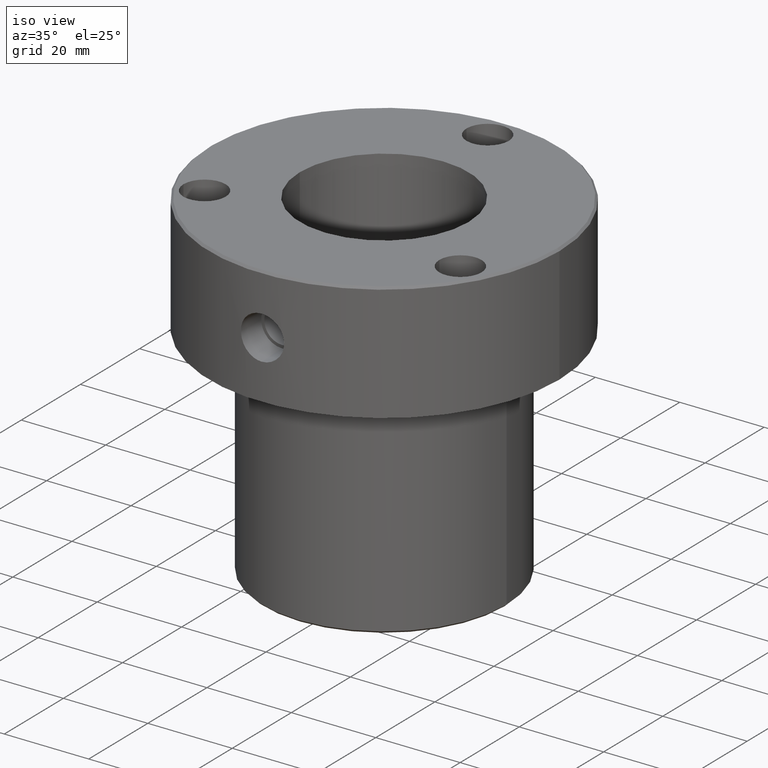
[diagram: clean part render]
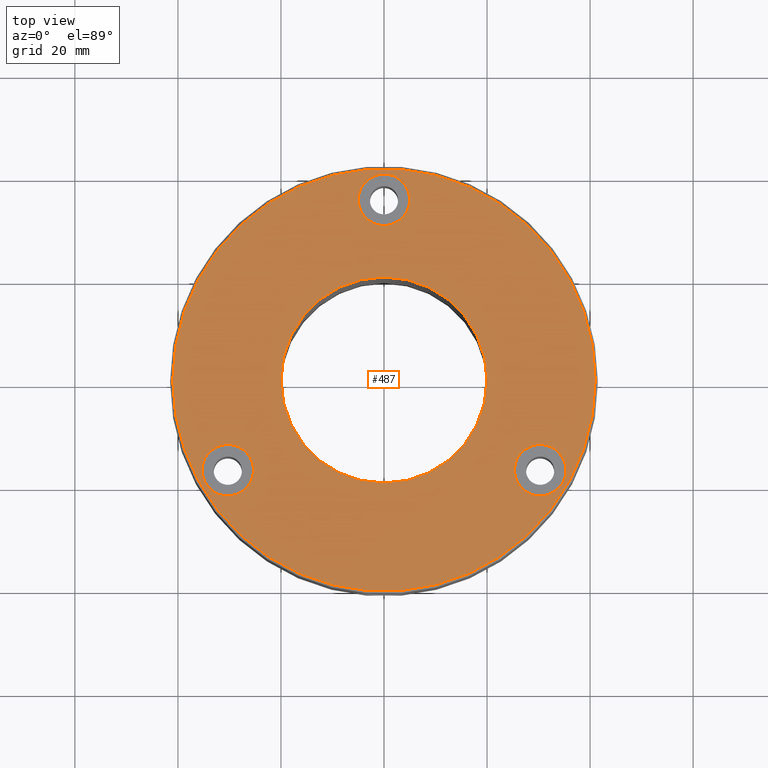
[diagram: tour spotlight — one face highlighted and labeled with its STEP entity id]
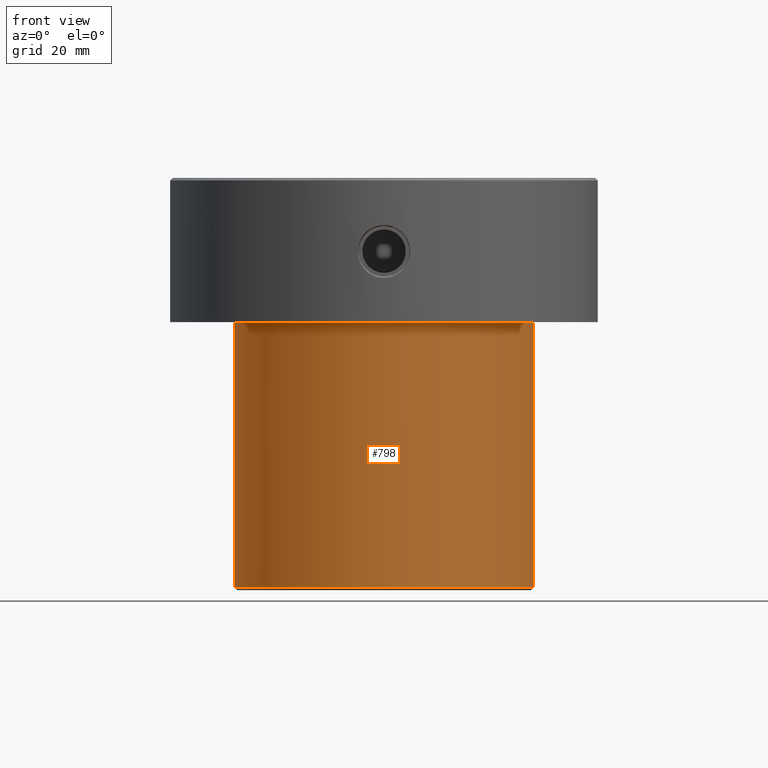
[diagram: tour spotlight — one face highlighted and labeled with its STEP entity id]
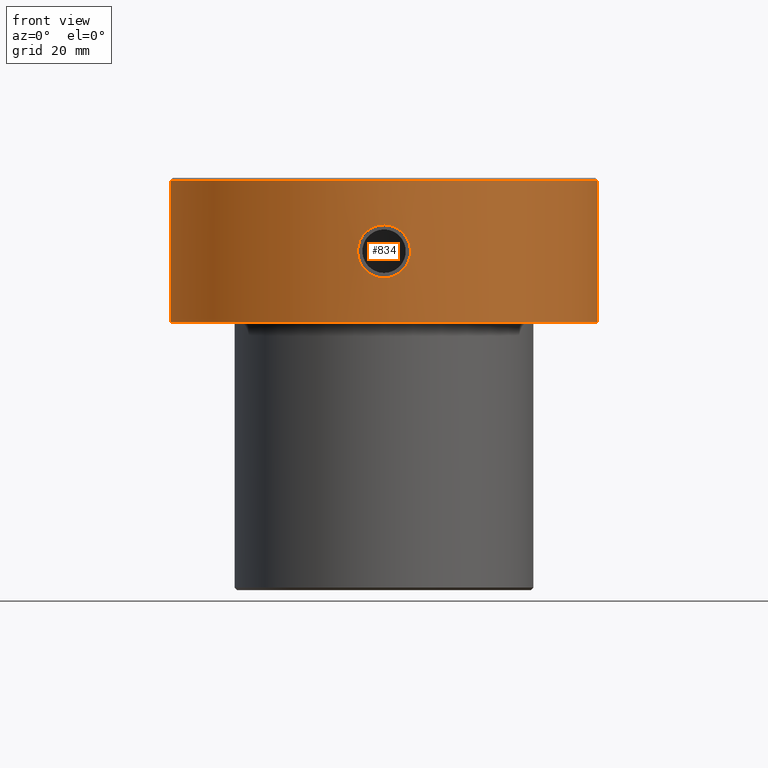
[diagram: tour spotlight — one face highlighted and labeled with its STEP entity id]
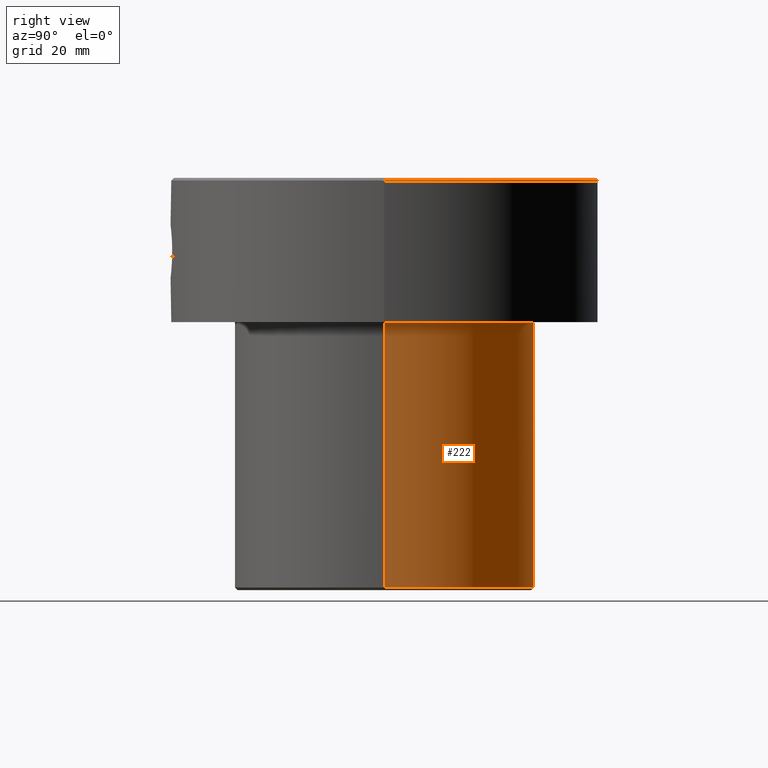
[diagram: tour spotlight — one face highlighted and labeled with its STEP entity id]
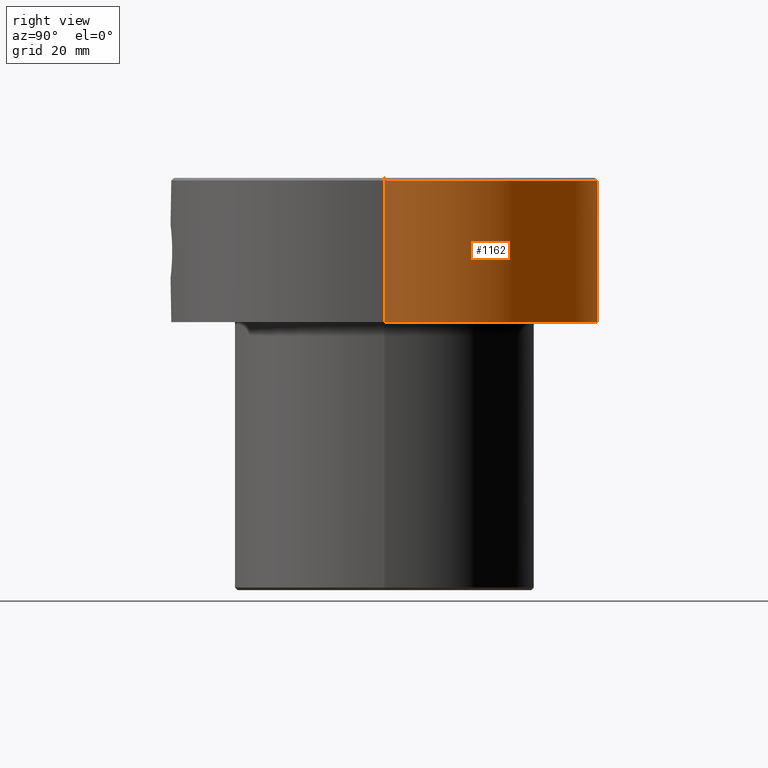
[diagram: tour spotlight — one face highlighted and labeled with its STEP entity id]
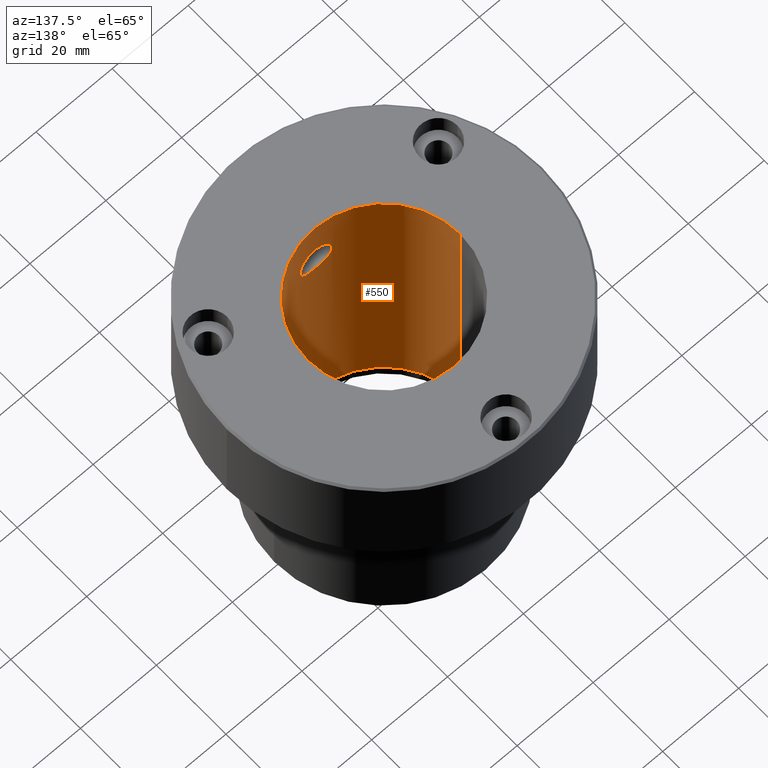
[diagram: tour spotlight — one face highlighted and labeled with its STEP entity id]
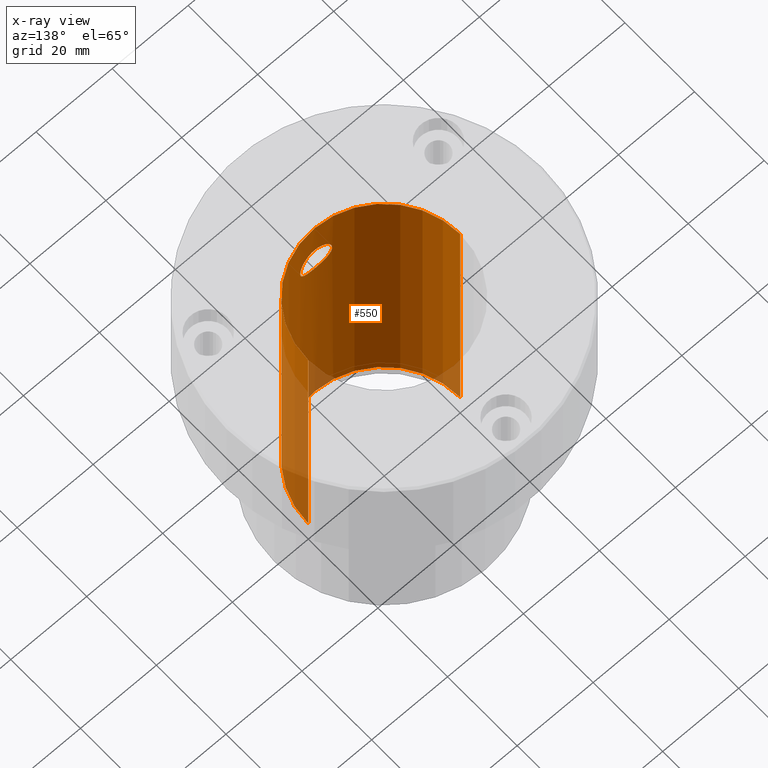
[diagram: x-ray of the same camera — body ghosted, this tour face saturated]
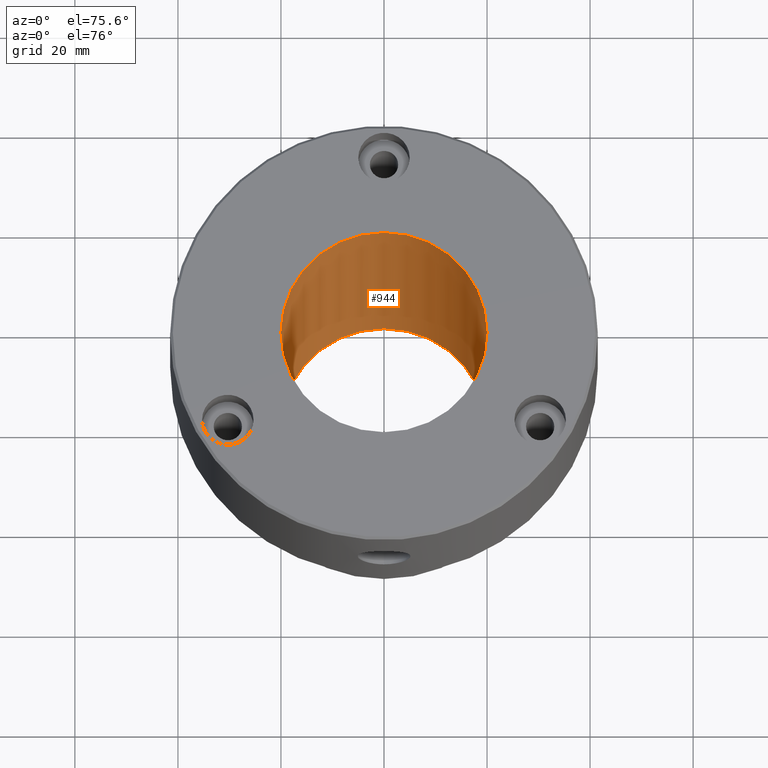
[diagram: tour spotlight — one face highlighted and labeled with its STEP entity id]
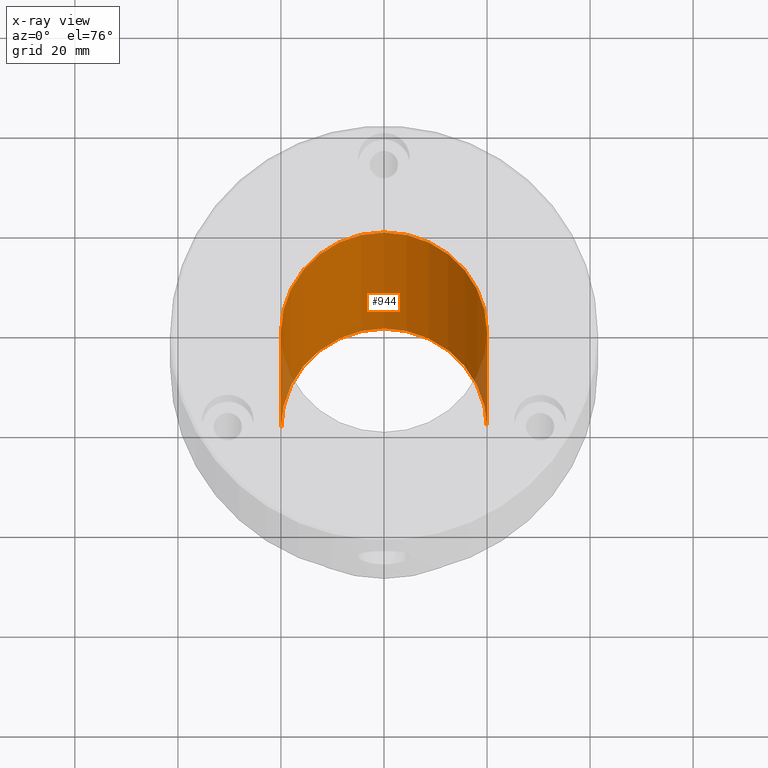
[diagram: x-ray of the same camera — body ghosted, this tour face saturated]
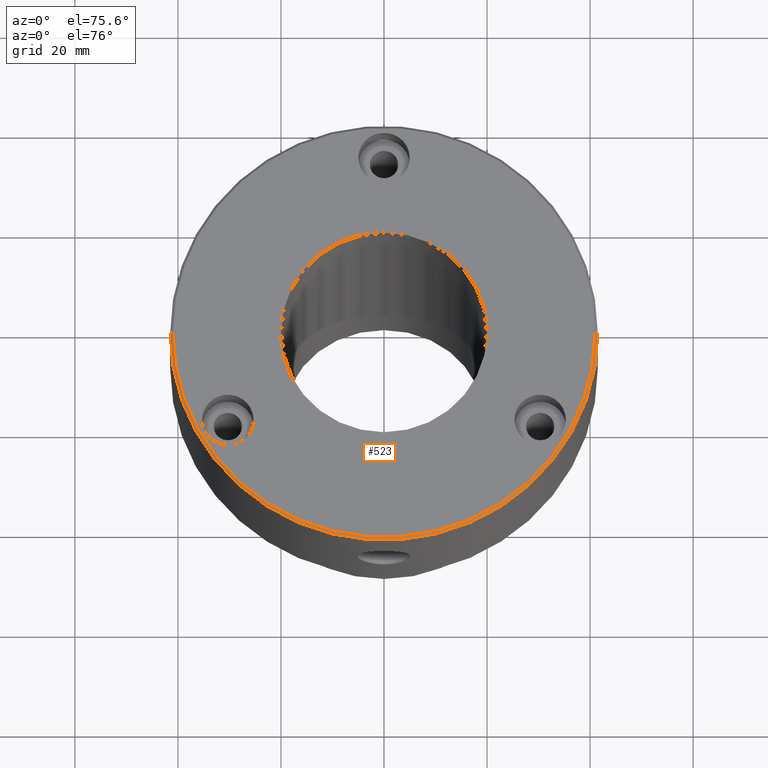
[diagram: tour spotlight — one face highlighted and labeled with its STEP entity id]
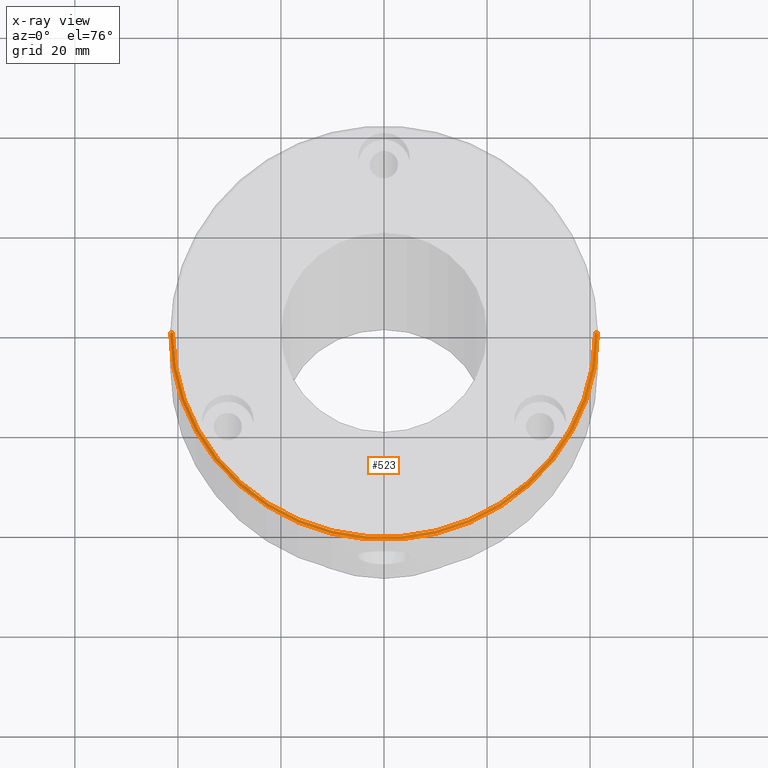
[diagram: x-ray of the same camera — body ghosted, this tour face saturated]
A machine part: a face-by-face anatomy tour. The part has 36 B-rep faces; the first image is the clean iso view, then the 8 largest visible faces are spotlighted one at a time (largest first), each with its STEP entity span.

Face 1 — top view, entity #487. In plain terms, the highlighted planar face has unit normal (0, -0, 1).
Definition (entity closure, byte-faithful):
#1 = CARTESIAN_POINT ( 'NONE',  ( 25.31088913245528715, -17.50000000000013856, 0.000000000000000000 ) ) ;
#8 = AXIS2_PLACEMENT_3D ( 'NONE', #1085, #636, #1178 ) ;
#27 = CARTESIAN_POINT ( 'NONE',  ( 30.31088913245528360, -17.50000000000013856, 0.000000000000000000 ) ) ;
#37 = EDGE_CURVE ( 'NONE', #326, #126, #994, .T. ) ;
#44 = CIRCLE ( 'NONE', #209, 20.00000000000000000 ) ;
#49 = CARTESIAN_POINT ( 'NONE',  ( 35.31088913245528005, -17.50000000000013856, 0.000000000000000000 ) ) ;
#58 = CARTESIAN_POINT ( 'NONE',  ( 0.000000000000000000, 0.000000000000000000, 0.000000000000000000 ) ) ;
#67 = CARTESIAN_POINT ( 'NONE',  ( -35.31088913245540084, -17.49999999999993605, 0.000000000000000000 ) ) ;
#77 = ORIENTED_EDGE ( 'NONE', *, *, #744, .F. ) ;
#107 = EDGE_LOOP ( 'NONE', ( #364, #694 ) ) ;
#114 = CARTESIAN_POINT ( 'NONE',  ( 0.000000000000000000, 0.000000000000000000, 0.000000000000000000 ) ) ;
#116 = VERTEX_POINT ( 'NONE', #49 ) ;
#119 = DIRECTION ( 'NONE',  ( 0.000000000000000000, 0.000000000000000000, -1.000000000000000000 ) ) ;
#126 = VERTEX_POINT ( 'NONE', #889 ) ;
#148 = DIRECTION ( 'NONE',  ( 1.000000000000000000, 0.000000000000000000, 0.000000000000000000 ) ) ;
#151 = CIRCLE ( 'NONE', #425, 5.000000000000000888 ) ;
#161 = CARTESIAN_POINT ( 'NONE',  ( 0.000000000000000000, 35.00000000000000711, 0.000000000000000000 ) ) ;
#169 = CARTESIAN_POINT ( 'NONE',  ( 0.000000000000000000, 0.000000000000000000, 0.000000000000000000 ) ) ;
#175 = CIRCLE ( 'NONE', #1036, 5.000000000000000888 ) ;
#182 = AXIS2_PLACEMENT_3D ( 'NONE', #715, #511, #426 ) ;
#201 = ORIENTED_EDGE ( 'NONE', *, *, #399, .T. ) ;
#209 = AXIS2_PLACEMENT_3D ( 'NONE', #169, #547, #922 ) ;
#247 = AXIS2_PLACEMENT_3D ( 'NONE', #368, #278, #658 ) ;
#278 = DIRECTION ( 'NONE',  ( -0.000000000000000000, -0.000000000000000000, 1.000000000000000000 ) ) ;
#312 = AXIS2_PLACEMENT_3D ( 'NONE', #58, #620, #148 ) ;
#314 = AXIS2_PLACEMENT_3D ( 'NONE', #114, #119, #979 ) ;
#323 = EDGE_CURVE ( 'NONE', #864, #1001, #946, .T. ) ;
#326 = VERTEX_POINT ( 'NONE', #1043 ) ;
#329 = CARTESIAN_POINT ( 'NONE',  ( 30.31088913245528360, -17.50000000000013856, 0.000000000000000000 ) ) ;
#364 = ORIENTED_EDGE ( 'NONE', *, *, #1190, .F. ) ;
#368 = CARTESIAN_POINT ( 'NONE',  ( -30.31088913245539729, -17.49999999999993605, 0.000000000000000000 ) ) ;
#386 = EDGE_CURVE ( 'NONE', #1001, #864, #151, .T. ) ;
#399 = EDGE_CURVE ( 'NONE', #126, #326, #630, .T. ) ;
#401 = EDGE_LOOP ( 'NONE', ( #976, #978 ) ) ;
#405 = VERTEX_POINT ( 'NONE', #1119 ) ;
#425 = AXIS2_PLACEMENT_3D ( 'NONE', #1221, #466, #459 ) ;
#426 = DIRECTION ( 'NONE',  ( 1.000000000000000000, 0.000000000000000000, 0.000000000000000000 ) ) ;
#450 = FACE_OUTER_BOUND ( 'NONE', #888, .T. ) ;
#453 = DIRECTION ( 'NONE',  ( 1.000000000000000000, 0.000000000000000000, 0.000000000000000000 ) ) ;
#459 = DIRECTION ( 'NONE',  ( 1.000000000000000000, 0.000000000000000000, 0.000000000000000000 ) ) ;
#466 = DIRECTION ( 'NONE',  ( -0.000000000000000000, -0.000000000000000000, 1.000000000000000000 ) ) ;
#480 = CARTESIAN_POINT ( 'NONE',  ( -5.000000000000000888, 35.00000000000000711, 0.000000000000000000 ) ) ;
#487 = ADVANCED_FACE ( 'NONE', ( #1004, #545, #930, #1097, #450 ), #539, .T. ) ;
#499 = CARTESIAN_POINT ( 'NONE',  ( -20.00000000000000000, 0.000000000000000000, 0.000000000000000000 ) ) ;
#511 = DIRECTION ( 'NONE',  ( -0.000000000000000000, -0.000000000000000000, 1.000000000000000000 ) ) ;
#517 = DIRECTION ( 'NONE',  ( -0.000000000000000000, -0.000000000000000000, 1.000000000000000000 ) ) ;
#539 = PLANE ( 'NONE',  #312 ) ;
#545 = FACE_BOUND ( 'NONE', #840, .T. ) ;
#547 = DIRECTION ( 'NONE',  ( 0.000000000000000000, 0.000000000000000000, -1.000000000000000000 ) ) ;
#556 = CIRCLE ( 'NONE', #8, 5.000000000000000888 ) ;
#592 = VERTEX_POINT ( 'NONE', #623 ) ;
#620 = DIRECTION ( 'NONE',  ( 0.000000000000000000, -0.000000000000000000, 1.000000000000000000 ) ) ;
#623 = CARTESIAN_POINT ( 'NONE',  ( 20.00000000000000000, 2.449293598294706513E-15, 0.000000000000000000 ) ) ;
#630 = CIRCLE ( 'NONE', #1160, 40.99999999999999289 ) ;
#636 = DIRECTION ( 'NONE',  ( -0.000000000000000000, -0.000000000000000000, 1.000000000000000000 ) ) ;
#657 = VERTEX_POINT ( 'NONE', #1 ) ;
#658 = DIRECTION ( 'NONE',  ( 1.000000000000000000, 0.000000000000000000, 0.000000000000000000 ) ) ;
#687 = DIRECTION ( 'NONE',  ( -0.000000000000000000, -0.000000000000000000, 1.000000000000000000 ) ) ;
#694 = ORIENTED_EDGE ( 'NONE', *, *, #1217, .F. ) ;
#695 = DIRECTION ( 'NONE',  ( -0.000000000000000000, -0.000000000000000000, 1.000000000000000000 ) ) ;
#715 = CARTESIAN_POINT ( 'NONE',  ( 0.000000000000000000, 0.000000000000000000, 0.000000000000000000 ) ) ;
#744 = EDGE_CURVE ( 'NONE', #657, #116, #1187, .T. ) ;
#758 = EDGE_CURVE ( 'NONE', #116, #657, #1235, .T. ) ;
#772 = DIRECTION ( 'NONE',  ( 1.000000000000000000, 0.000000000000000000, 0.000000000000000000 ) ) ;
#821 = AXIS2_PLACEMENT_3D ( 'NONE', #27, #517, #772 ) ;
#835 = DIRECTION ( 'NONE',  ( -0.000000000000000000, -0.000000000000000000, 1.000000000000000000 ) ) ;
#840 = EDGE_LOOP ( 'NONE', ( #912, #77 ) ) ;
#848 = CIRCLE ( 'NONE', #314, 20.00000000000000000 ) ;
#864 = VERTEX_POINT ( 'NONE', #67 ) ;
#867 = ORIENTED_EDGE ( 'NONE', *, *, #37, .T. ) ;
#869 = EDGE_CURVE ( 'NONE', #592, #1153, #44, .T. ) ;
#870 = DIRECTION ( 'NONE',  ( 1.000000000000000000, 0.000000000000000000, 0.000000000000000000 ) ) ;
#888 = EDGE_LOOP ( 'NONE', ( #867, #201 ) ) ;
#889 = CARTESIAN_POINT ( 'NONE',  ( 40.99999999999999289, 5.051668046482831961E-15, 0.000000000000000000 ) ) ;
#912 = ORIENTED_EDGE ( 'NONE', *, *, #758, .F. ) ;
#922 = DIRECTION ( 'NONE',  ( -1.000000000000000000, 0.000000000000000000, 0.000000000000000000 ) ) ;
#930 = FACE_BOUND ( 'NONE', #107, .T. ) ;
#943 = VERTEX_POINT ( 'NONE', #480 ) ;
#946 = CIRCLE ( 'NONE', #247, 5.000000000000000888 ) ;
#956 = ORIENTED_EDGE ( 'NONE', *, *, #869, .T. ) ;
#960 = EDGE_LOOP ( 'NONE', ( #1245, #956 ) ) ;
#976 = ORIENTED_EDGE ( 'NONE', *, *, #386, .F. ) ;
#978 = ORIENTED_EDGE ( 'NONE', *, *, #323, .F. ) ;
#979 = DIRECTION ( 'NONE',  ( -1.000000000000000000, 0.000000000000000000, 0.000000000000000000 ) ) ;
#994 = CIRCLE ( 'NONE', #182, 40.99999999999999289 ) ;
#1001 = VERTEX_POINT ( 'NONE', #1059 ) ;
#1004 = FACE_BOUND ( 'NONE', #401, .T. ) ;
#1036 = AXIS2_PLACEMENT_3D ( 'NONE', #161, #695, #1091 ) ;
#1043 = CARTESIAN_POINT ( 'NONE',  ( -40.99999999999999289, 0.000000000000000000, 0.000000000000000000 ) ) ;
#1051 = EDGE_CURVE ( 'NONE', #1153, #592, #848, .T. ) ;
#1059 = CARTESIAN_POINT ( 'NONE',  ( -25.31088913245539729, -17.49999999999993605, 0.000000000000000000 ) ) ;
#1085 = CARTESIAN_POINT ( 'NONE',  ( 0.000000000000000000, 35.00000000000000711, 0.000000000000000000 ) ) ;
#1091 = DIRECTION ( 'NONE',  ( 1.000000000000000000, 0.000000000000000000, 0.000000000000000000 ) ) ;
#1097 = FACE_BOUND ( 'NONE', #960, .T. ) ;
#1119 = CARTESIAN_POINT ( 'NONE',  ( 5.000000000000000888, 35.00000000000000711, 0.000000000000000000 ) ) ;
#1153 = VERTEX_POINT ( 'NONE', #499 ) ;
#1160 = AXIS2_PLACEMENT_3D ( 'NONE', #1212, #835, #453 ) ;
#1178 = DIRECTION ( 'NONE',  ( 1.000000000000000000, 0.000000000000000000, 0.000000000000000000 ) ) ;
#1187 = CIRCLE ( 'NONE', #1209, 4.999999999999997335 ) ;
#1190 = EDGE_CURVE ( 'NONE', #405, #943, #175, .T. ) ;
#1209 = AXIS2_PLACEMENT_3D ( 'NONE', #329, #687, #870 ) ;
#1212 = CARTESIAN_POINT ( 'NONE',  ( 0.000000000000000000, 0.000000000000000000, 0.000000000000000000 ) ) ;
#1217 = EDGE_CURVE ( 'NONE', #943, #405, #556, .T. ) ;
#1221 = CARTESIAN_POINT ( 'NONE',  ( -30.31088913245539729, -17.49999999999993605, 0.000000000000000000 ) ) ;
#1235 = CIRCLE ( 'NONE', #821, 4.999999999999997335 ) ;
#1245 = ORIENTED_EDGE ( 'NONE', *, *, #1051, .T. ) ;

Face 2 — front view, entity #798. In plain terms, the highlighted cylindrical surface (partial cylindrical patch) has radius 29 mm, axis along (-0, -0, 1).
Definition (entity closure, byte-faithful):
#11 = VERTEX_POINT ( 'NONE', #693 ) ;
#39 = FACE_OUTER_BOUND ( 'NONE', #75, .T. ) ;
#46 = EDGE_CURVE ( 'NONE', #305, #11, #802, .T. ) ;
#75 = EDGE_LOOP ( 'NONE', ( #918, #863, #1228, #104 ) ) ;
#104 = ORIENTED_EDGE ( 'NONE', *, *, #482, .F. ) ;
#187 = EDGE_CURVE ( 'NONE', #680, #305, #704, .T. ) ;
#221 = DIRECTION ( 'NONE',  ( -0.000000000000000000, -0.000000000000000000, 1.000000000000000000 ) ) ;
#238 = DIRECTION ( 'NONE',  ( 1.000000000000000000, 0.000000000000000000, 0.000000000000000000 ) ) ;
#243 = DIRECTION ( 'NONE',  ( -1.000000000000000000, 0.000000000000000000, 0.000000000000000000 ) ) ;
#255 = CARTESIAN_POINT ( 'NONE',  ( 0.000000000000000000, 0.000000000000000000, -27.99999999999999645 ) ) ;
#305 = VERTEX_POINT ( 'NONE', #1213 ) ;
#315 = EDGE_CURVE ( 'NONE', #680, #467, #934, .T. ) ;
#335 = DIRECTION ( 'NONE',  ( -0.000000000000000000, -0.000000000000000000, 1.000000000000000000 ) ) ;
#336 = VECTOR ( 'NONE', #335, 1000.000000000000000 ) ;
#375 = CARTESIAN_POINT ( 'NONE',  ( -29.00000000000000000, 3.551475717527324030E-15, -27.99999999999999645 ) ) ;
#429 = CIRCLE ( 'NONE', #653, 29.00000000000000000 ) ;
#437 = CARTESIAN_POINT ( 'NONE',  ( 0.000000000000000000, 0.000000000000000000, -79.50000000000002842 ) ) ;
#467 = VERTEX_POINT ( 'NONE', #375 ) ;
#470 = VECTOR ( 'NONE', #750, 1000.000000000000000 ) ;
#474 = AXIS2_PLACEMENT_3D ( 'NONE', #787, #221, #238 ) ;
#482 = EDGE_CURVE ( 'NONE', #467, #11, #429, .T. ) ;
#653 = AXIS2_PLACEMENT_3D ( 'NONE', #255, #719, #1116 ) ;
#663 = CARTESIAN_POINT ( 'NONE',  ( -29.00000000000000000, 3.551475717527324030E-15, 0.000000000000000000 ) ) ;
#680 = VERTEX_POINT ( 'NONE', #1180 ) ;
#693 = CARTESIAN_POINT ( 'NONE',  ( 29.00000000000000000, 0.000000000000000000, -27.99999999999999645 ) ) ;
#704 = CIRCLE ( 'NONE', #1183, 29.00000000000000000 ) ;
#719 = DIRECTION ( 'NONE',  ( -0.000000000000000000, -0.000000000000000000, 1.000000000000000000 ) ) ;
#750 = DIRECTION ( 'NONE',  ( -0.000000000000000000, -0.000000000000000000, 1.000000000000000000 ) ) ;
#787 = CARTESIAN_POINT ( 'NONE',  ( 0.000000000000000000, 0.000000000000000000, 0.000000000000000000 ) ) ;
#798 = ADVANCED_FACE ( 'NONE', ( #39 ), #991, .T. ) ;
#802 = LINE ( 'NONE', #1191, #336 ) ;
#863 = ORIENTED_EDGE ( 'NONE', *, *, #187, .T. ) ;
#918 = ORIENTED_EDGE ( 'NONE', *, *, #315, .F. ) ;
#934 = LINE ( 'NONE', #663, #470 ) ;
#991 = CYLINDRICAL_SURFACE ( 'NONE', #474, 29.00000000000000000 ) ;
#1096 = DIRECTION ( 'NONE',  ( -0.000000000000000000, -0.000000000000000000, 1.000000000000000000 ) ) ;
#1116 = DIRECTION ( 'NONE',  ( 1.000000000000000000, 0.000000000000000000, 0.000000000000000000 ) ) ;
#1180 = CARTESIAN_POINT ( 'NONE',  ( -29.00000000000000000, 3.551475717527324030E-15, -79.50000000000002842 ) ) ;
#1183 = AXIS2_PLACEMENT_3D ( 'NONE', #437, #1096, #243 ) ;
#1191 = CARTESIAN_POINT ( 'NONE',  ( 29.00000000000000000, 0.000000000000000000, 0.000000000000000000 ) ) ;
#1213 = CARTESIAN_POINT ( 'NONE',  ( 29.00000000000000000, 0.000000000000000000, -79.50000000000002842 ) ) ;
#1228 = ORIENTED_EDGE ( 'NONE', *, *, #46, .T. ) ;

Face 3 — front view, entity #834. In plain terms, the highlighted cylindrical surface (partial cylindrical patch) has radius 41.5 mm, axis along (-0, -0, 1).
Definition (entity closure, byte-faithful):
#15 = VERTEX_POINT ( 'NONE', #992 ) ;
#22 = AXIS2_PLACEMENT_3D ( 'NONE', #69, #257, #1236 ) ;
#42 = CIRCLE ( 'NONE', #22, 41.50000000000000000 ) ;
#45 = CARTESIAN_POINT ( 'NONE',  ( -4.968702008353958810, -41.20153389003530719, -12.91289993887919962 ) ) ;
#47 = CARTESIAN_POINT ( 'NONE',  ( 3.861269707058927025, -41.32011769456687489, -10.85618939046865350 ) ) ;
#52 = CARTESIAN_POINT ( 'NONE',  ( 4.176313524918904285, -41.28943214982925980, -11.25397034236628002 ) ) ;
#69 = CARTESIAN_POINT ( 'NONE',  ( 0.000000000000000000, 0.000000000000000000, -27.99999999999999645 ) ) ;
#80 = CARTESIAN_POINT ( 'NONE',  ( -4.457652184850283916, -41.26032858553116256, -16.82367133916453028 ) ) ;
#96 = CARTESIAN_POINT ( 'NONE',  ( -5.133944861027605278, -41.18121671560616903, -14.58322601611474667 ) ) ;
#156 = DIRECTION ( 'NONE',  ( -0.000000000000000000, -0.000000000000000000, 1.000000000000000000 ) ) ;
#162 = CARTESIAN_POINT ( 'NONE',  ( -0.6766514500765288265, -41.49578757569125997, -9.140436106059212307 ) ) ;
#163 = CARTESIAN_POINT ( 'NONE',  ( 0.3361113663424322717, -41.50000000000000000, -9.106627000000001360 ) ) ;
#167 = CARTESIAN_POINT ( 'NONE',  ( -0.3358848179217935881, -41.50000000000000000, -9.106627000000003136 ) ) ;
#172 = CARTESIAN_POINT ( 'NONE',  ( -3.870759735923740230, -41.31978293821809700, -10.85441625085839945 ) ) ;
#183 = CARTESIAN_POINT ( 'NONE',  ( -3.391550504605600924, -41.36187607212048079, -18.12598980435603124 ) ) ;
#188 = CARTESIAN_POINT ( 'NONE',  ( -5.125564061013234252, -41.18226403669493152, -13.91293155588416219 ) ) ;
#199 = EDGE_CURVE ( 'NONE', #421, #996, #832, .T. ) ;
#220 = CARTESIAN_POINT ( 'NONE',  ( -0.6750926142630175875, -41.49582201622714450, -19.35984715612938700 ) ) ;
#245 = CARTESIAN_POINT ( 'NONE',  ( 3.135542028144178595, -41.38234077573482494, -10.16326081240967483 ) ) ;
#256 = CARTESIAN_POINT ( 'NONE',  ( 3.867927861643148280, -41.32004063562263241, -17.64862558910598977 ) ) ;
#257 = DIRECTION ( 'NONE',  ( -0.000000000000000000, -0.000000000000000000, 1.000000000000000000 ) ) ;
#262 = CARTESIAN_POINT ( 'NONE',  ( 5.133735936401986777, -41.18124276104335735, -13.90992044629006408 ) ) ;
#267 = CARTESIAN_POINT ( 'NONE',  ( 3.394104630397192679, -41.36165323808776151, -10.37653633906442252 ) ) ;
#272 = CARTESIAN_POINT ( 'NONE',  ( -5.092463226589477365, -41.18637027485478797, -13.57687092004547402 ) ) ;
#275 = CARTESIAN_POINT ( 'NONE',  ( 4.970103653023421941, -41.20136385189956485, -15.58140926658041892 ) ) ;
#279 = EDGE_CURVE ( 'NONE', #15, #996, #1233, .T. ) ;
#283 = CARTESIAN_POINT ( 'NONE',  ( -4.617200543455427741, -41.24255031704900887, -16.52343980841959947 ) ) ;
#289 = CARTESIAN_POINT ( 'NONE',  ( -5.133770054922493387, -41.18123850768246541, -14.08069826201581343 ) ) ;
#296 = CARTESIAN_POINT ( 'NONE',  ( -41.50000000000000000, 5.082284216461515748E-15, -0.5000000000000143219 ) ) ;
#322 = ORIENTED_EDGE ( 'NONE', *, *, #279, .T. ) ;
#327 = LINE ( 'NONE', #779, #1144 ) ;
#333 = VERTEX_POINT ( 'NONE', #1136 ) ;
#340 = CARTESIAN_POINT ( 'NONE',  ( -3.394086074553285037, -41.36166610175697400, -10.37626308858978241 ) ) ;
#341 = CARTESIAN_POINT ( 'NONE',  ( 5.100488863915328075, -41.18542614721241790, -14.92431021878953423 ) ) ;
#345 = CARTESIAN_POINT ( 'NONE',  ( 4.075041792612915437, -41.29958310239907604, -11.11709863536500009 ) ) ;
#347 = VERTEX_POINT ( 'NONE', #580 ) ;
#350 = CARTESIAN_POINT ( 'NONE',  ( -1.654948281226035656, -41.46816428171756996, -9.369456122873327075 ) ) ;
#352 = CARTESIAN_POINT ( 'NONE',  ( 3.393836595590068672, -41.36167909109607876, -18.12378467651598868 ) ) ;
#357 = CARTESIAN_POINT ( 'NONE',  ( -1.334466502813387301, -41.47984381437148471, -9.272069786490492405 ) ) ;
#359 = CARTESIAN_POINT ( 'NONE',  ( 1.335257197043239197, -41.47985037499571348, -19.22799268107951676 ) ) ;
#365 = CARTESIAN_POINT ( 'NONE',  ( 2.569980992943154074, -41.42061513642919834, -18.70572280359078121 ) ) ;
#372 = CARTESIAN_POINT ( 'NONE',  ( -3.132951887491444598, -41.38251185378926778, -18.33837002926375703 ) ) ;
#381 = CARTESIAN_POINT ( 'NONE',  ( -3.868908882022317641, -41.31995826587137088, -17.64772823622658393 ) ) ;
#388 = CARTESIAN_POINT ( 'NONE',  ( -1.655288949730983727, -41.46813820925184757, -19.13030085942898495 ) ) ;
#394 = VECTOR ( 'NONE', #559, 1000.000000000000000 ) ;
#407 = DIRECTION ( 'NONE',  ( -0.000000000000000000, -0.000000000000000000, 1.000000000000000000 ) ) ;
#421 = VERTEX_POINT ( 'NONE', #923 ) ;
#434 = CARTESIAN_POINT ( 'NONE',  ( 5.100580268673916784, -41.18541498604831474, -13.57613788281328837 ) ) ;
#440 = CARTESIAN_POINT ( 'NONE',  ( 1.654050052049929720, -41.46733879550497193, -9.377957995213547449 ) ) ;
#445 = CARTESIAN_POINT ( 'NONE',  ( 0.000000000000000000, 0.000000000000000000, 0.000000000000000000 ) ) ;
#451 = EDGE_LOOP ( 'NONE', ( #942, #1214, #1208, #322 ) ) ;
#465 = EDGE_CURVE ( 'NONE', #421, #333, #42, .T. ) ;
#516 = CARTESIAN_POINT ( 'NONE',  ( -1.335186249268033754, -41.47982970697925964, -19.22781482291251010 ) ) ;
#533 = CARTESIAN_POINT ( 'NONE',  ( 0.6694217195533843645, -41.49593683091968899, -19.36078778065549955 ) ) ;
#540 = CARTESIAN_POINT ( 'NONE',  ( 6.298815287416284232E-16, -41.50000000000000000, -9.106627000000006689 ) ) ;
#542 = EDGE_CURVE ( 'NONE', #347, #1017, #877, .T. ) ;
#559 = DIRECTION ( 'NONE',  ( -0.000000000000000000, -0.000000000000000000, 1.000000000000000000 ) ) ;
#563 = DIRECTION ( 'NONE',  ( 0.000000000000000000, 0.000000000000000000, -1.000000000000000000 ) ) ;
#580 = CARTESIAN_POINT ( 'NONE',  ( 6.298815287416284232E-16, -41.50000000000000000, -9.106627000000006689 ) ) ;
#639 = CARTESIAN_POINT ( 'NONE',  ( 0.6696030836878821280, -41.49591732300108049, -9.139378117575709837 ) ) ;
#643 = CARTESIAN_POINT ( 'NONE',  ( 1.165872177383819652, -41.48395018266413814, -9.238160639755104597 ) ) ;
#654 = CARTESIAN_POINT ( 'NONE',  ( -4.969954534212426722, -41.20138294554474356, -15.58308990759573476 ) ) ;
#655 = CARTESIAN_POINT ( 'NONE',  ( 3.748669630381223250, -41.33051599254154951, -10.73182144592346887 ) ) ;
#713 = CARTESIAN_POINT ( 'NONE',  ( -4.871555449415037486, -41.21328197726079168, -12.59267309540596180 ) ) ;
#720 = CARTESIAN_POINT ( 'NONE',  ( 4.870844476425746805, -41.21336692532975832, -12.59050681500873736 ) ) ;
#726 = CARTESIAN_POINT ( 'NONE',  ( 4.969997645958297738, -41.20137679798295238, -12.91806904234542230 ) ) ;
#727 = AXIS2_PLACEMENT_3D ( 'NONE', #1129, #563, #917 ) ;
#735 = CARTESIAN_POINT ( 'NONE',  ( -3.132718741693854003, -41.38252761798424473, -10.16147806440636714 ) ) ;
#737 = CARTESIAN_POINT ( 'NONE',  ( 2.716001818503750886, -41.41126645968811459, -18.61791239501352635 ) ) ;
#739 = CARTESIAN_POINT ( 'NONE',  ( -2.278754979423208038, -41.43856631753568820, -9.628666380064457186 ) ) ;
#740 = CARTESIAN_POINT ( 'NONE',  ( 2.572071507729756235, -41.42118057284736210, -9.785757070644967470 ) ) ;
#743 = CARTESIAN_POINT ( 'NONE',  ( 4.872052807103845140, -41.21322599703842116, -15.90629936699669855 ) ) ;
#753 = CARTESIAN_POINT ( 'NONE',  ( -2.275777960866582905, -41.43871743576949740, -18.87267168938217665 ) ) ;
#779 = CARTESIAN_POINT ( 'NONE',  ( 41.50000000000000000, 0.000000000000000000, 0.000000000000000000 ) ) ;
#808 = DIRECTION ( 'NONE',  ( 1.000000000000000000, 0.000000000000000000, 0.000000000000000000 ) ) ;
#813 = CYLINDRICAL_SURFACE ( 'NONE', #823, 41.50000000000000000 ) ;
#818 = CARTESIAN_POINT ( 'NONE',  ( 4.613779109213201224, -41.24293614143856956, -11.96939070619375123 ) ) ;
#823 = AXIS2_PLACEMENT_3D ( 'NONE', #445, #156, #808 ) ;
#825 = CARTESIAN_POINT ( 'NONE',  ( -41.50000000000000000, 5.082284216461515748E-15, 0.000000000000000000 ) ) ;
#828 = ORIENTED_EDGE ( 'NONE', *, *, #853, .F. ) ;
#830 = CARTESIAN_POINT ( 'NONE',  ( 4.456275523610685241, -41.26047522887699870, -11.67406478259290559 ) ) ;
#832 = LINE ( 'NONE', #825, #394 ) ;
#833 = CARTESIAN_POINT ( 'NONE',  ( -4.454109271255983771, -41.26070536494628271, -11.67053161493941893 ) ) ;
#834 = ADVANCED_FACE ( 'NONE', ( #1189, #933 ), #813, .T. ) ;
#853 = EDGE_CURVE ( 'NONE', #1017, #347, #1196, .T. ) ;
#854 = CARTESIAN_POINT ( 'NONE',  ( -5.101709454286791789, -41.18527607460710982, -14.91722213312219658 ) ) ;
#877 = B_SPLINE_CURVE_WITH_KNOTS ( 'NONE', 3,
 ( #1207, #167, #162, #357, #350, #739, #920, #735, #340, #172, #1218, #833, #1225, #713, #45, #951, #272, #188, #289, #96, #854, #654, #1039, #283, #80, #1240, #381, #183, #372, #1045, #753, #388, #516, #220, #883, #1156 ),
 .UNSPECIFIED., .F., .F.,
 ( 4, 2, 2, 2, 2, 2, 2, 2, 2, 2, 2, 2, 2, 2, 2, 2, 2, 4 ),
 ( 0.02021362857546973521, 0.02121826824949517992, 0.02222290792352062810, 0.02322754759754607629, 0.02423218727157152447, 0.02523682694559696918, 0.02624146661962241736, 0.02724610629364786554, 0.02774842613066058616, 0.02825074596767330332, 0.02925538564169874109, 0.03026002531572417886, 0.03126466498974961317, 0.03226930466377504747, 0.03327394433780048177, 0.03427858401182591608, 0.03528322368585135732, 0.03628786335987679162 ),
 .UNSPECIFIED. ) ;
#883 = CARTESIAN_POINT ( 'NONE',  ( -0.3350682603603476473, -41.50000000000000000, -19.39337300000000397 ) ) ;
#904 = CARTESIAN_POINT ( 'NONE',  ( 1.811981621299564305, -41.46071242823579439, -9.434718804918906798 ) ) ;
#909 = CARTESIAN_POINT ( 'NONE',  ( 2.272759571934459544, -41.43798649201547590, -18.86499513455745003 ) ) ;
#917 = DIRECTION ( 'NONE',  ( 1.000000000000000000, 0.000000000000000000, 0.000000000000000000 ) ) ;
#920 = CARTESIAN_POINT ( 'NONE',  ( -2.577194124947769005, -41.42083520657356388, -9.789080731633461596 ) ) ;
#923 = CARTESIAN_POINT ( 'NONE',  ( -41.50000000000000000, 5.082284216461515748E-15, -27.99999999999999645 ) ) ;
#933 = FACE_BOUND ( 'NONE', #1175, .T. ) ;
#942 = ORIENTED_EDGE ( 'NONE', *, *, #199, .F. ) ;
#951 = CARTESIAN_POINT ( 'NONE',  ( -5.067404577820334488, -41.18947085699902289, -13.40828157554759414 ) ) ;
#954 = ORIENTED_EDGE ( 'NONE', *, *, #542, .F. ) ;
#992 = CARTESIAN_POINT ( 'NONE',  ( 41.50000000000000000, 0.000000000000000000, -0.5000000000000143219 ) ) ;
#996 = VERTEX_POINT ( 'NONE', #296 ) ;
#1013 = CARTESIAN_POINT ( 'NONE',  ( 4.456002940690025227, -41.26050075175471932, -16.82621984428378781 ) ) ;
#1017 = VERTEX_POINT ( 'NONE', #1172 ) ;
#1032 = CARTESIAN_POINT ( 'NONE',  ( 0.3352942580272265660, -41.50000000000000711, -19.39337300000000397 ) ) ;
#1039 = CARTESIAN_POINT ( 'NONE',  ( -4.872401314849809317, -41.21317996636337000, -15.90461268624623159 ) ) ;
#1041 = CARTESIAN_POINT ( 'NONE',  ( 2.275757424508589644, -41.43871062130158123, -9.627399528432427189 ) ) ;
#1045 = CARTESIAN_POINT ( 'NONE',  ( -2.576868211289954136, -41.42085736775601390, -18.71113336113497283 ) ) ;
#1073 = EDGE_CURVE ( 'NONE', #333, #15, #327, .T. ) ;
#1098 = CARTESIAN_POINT ( 'NONE',  ( 4.084437904173683798, -41.29893765582764331, -17.38401679090950225 ) ) ;
#1104 = CARTESIAN_POINT ( 'NONE',  ( 1.331345046396683385, -41.47895356350391438, -9.279711073221607265 ) ) ;
#1112 = CARTESIAN_POINT ( 'NONE',  ( 5.133920949912530673, -41.18121969646769998, -14.58726452070032842 ) ) ;
#1123 = CARTESIAN_POINT ( 'NONE',  ( 3.135600815351351489, -41.38232267793090813, -18.33650307568278137 ) ) ;
#1129 = CARTESIAN_POINT ( 'NONE',  ( 0.000000000000000000, 0.000000000000000000, -0.5000000000000143219 ) ) ;
#1136 = CARTESIAN_POINT ( 'NONE',  ( 41.50000000000000000, 0.000000000000000000, -27.99999999999999645 ) ) ;
#1144 = VECTOR ( 'NONE', #407, 1000.000000000000000 ) ;
#1156 = CARTESIAN_POINT ( 'NONE',  ( 2.108101396014697804E-21, -41.50000000000000000, -19.39337300000000397 ) ) ;
#1172 = CARTESIAN_POINT ( 'NONE',  ( 2.108101396014697804E-21, -41.50000000000000000, -19.39337300000000397 ) ) ;
#1175 = EDGE_LOOP ( 'NONE', ( #828, #954 ) ) ;
#1189 = FACE_OUTER_BOUND ( 'NONE', #451, .T. ) ;
#1196 = B_SPLINE_CURVE_WITH_KNOTS ( 'NONE', 3,
 ( #1220, #1032, #533, #359, #1210, #1226, #909, #365, #737, #1123, #352, #256, #1098, #1013, #1200, #743, #275, #341, #1112, #262, #434, #726, #720, #818, #830, #52, #345, #47, #655, #267, #245, #740, #1041, #904, #440, #1104, #643, #639, #163, #540 ),
 .UNSPECIFIED., .F., .F.,
 ( 4, 2, 2, 2, 2, 2, 2, 2, 2, 2, 2, 2, 2, 2, 2, 2, 2, 2, 2, 4 ),
 ( 0.004128552001529216600, 0.005133869287400498471, 0.006139186573271779475, 0.006641845216207416941, 0.007144503859143055274, 0.008149821145014338880, 0.009155138430885620751, 0.01016045571675690609, 0.01116577300262818796, 0.01217109028849947157, 0.01317640757437075517, 0.01418172486024203705, 0.01518704214611332239, 0.01568970078904896592, 0.01619235943198460426, 0.01719767671785588786, 0.01820299400372717147, 0.01870565264666280980, 0.01920831128959845160, 0.02021362857546973174 ),
 .UNSPECIFIED. ) ;
#1200 = CARTESIAN_POINT ( 'NONE',  ( 4.613789728197060569, -41.24293684962500350, -16.53085661944571072 ) ) ;
#1207 = CARTESIAN_POINT ( 'NONE',  ( 6.298815287416284232E-16, -41.50000000000000000, -9.106627000000006689 ) ) ;
#1208 = ORIENTED_EDGE ( 'NONE', *, *, #1073, .T. ) ;
#1210 = CARTESIAN_POINT ( 'NONE',  ( 1.657148946896774389, -41.46805686273120273, -19.12959867935311564 ) ) ;
#1214 = ORIENTED_EDGE ( 'NONE', *, *, #465, .T. ) ;
#1218 = CARTESIAN_POINT ( 'NONE',  ( -4.082477898350872714, -41.29913159889288465, -11.11345080764193227 ) ) ;
#1220 = CARTESIAN_POINT ( 'NONE',  ( 2.108101396014697804E-21, -41.50000000000000000, -19.39337300000000397 ) ) ;
#1225 = CARTESIAN_POINT ( 'NONE',  ( -4.615070424327308629, -41.24279074956536562, -11.97206579864487708 ) ) ;
#1226 = CARTESIAN_POINT ( 'NONE',  ( 2.121100959485586301, -41.44604807904364208, -18.93685890734909094 ) ) ;
#1233 = CIRCLE ( 'NONE', #727, 41.50000000000000000 ) ;
#1236 = DIRECTION ( 'NONE',  ( 1.000000000000000000, 0.000000000000000000, 0.000000000000000000 ) ) ;
#1240 = CARTESIAN_POINT ( 'NONE',  ( -4.083468521059986145, -41.29903949033938915, -17.38554455033941792 ) ) ;

Face 4 — right view, entity #222. In plain terms, the highlighted cylindrical surface (partial cylindrical patch) has radius 29 mm, axis along (-0, -0, 1).
Definition (entity closure, byte-faithful):
#11 = VERTEX_POINT ( 'NONE', #693 ) ;
#46 = EDGE_CURVE ( 'NONE', #305, #11, #802, .T. ) ;
#181 = DIRECTION ( 'NONE',  ( 1.000000000000000000, 0.000000000000000000, 0.000000000000000000 ) ) ;
#219 = DIRECTION ( 'NONE',  ( -0.000000000000000000, -0.000000000000000000, 1.000000000000000000 ) ) ;
#222 = ADVANCED_FACE ( 'NONE', ( #287 ), #1049, .T. ) ;
#250 = EDGE_LOOP ( 'NONE', ( #285, #1219, #710, #777 ) ) ;
#253 = CIRCLE ( 'NONE', #332, 29.00000000000000000 ) ;
#285 = ORIENTED_EDGE ( 'NONE', *, *, #1151, .T. ) ;
#287 = FACE_OUTER_BOUND ( 'NONE', #250, .T. ) ;
#305 = VERTEX_POINT ( 'NONE', #1213 ) ;
#315 = EDGE_CURVE ( 'NONE', #680, #467, #934, .T. ) ;
#332 = AXIS2_PLACEMENT_3D ( 'NONE', #334, #691, #1079 ) ;
#334 = CARTESIAN_POINT ( 'NONE',  ( 0.000000000000000000, 0.000000000000000000, -27.99999999999999645 ) ) ;
#335 = DIRECTION ( 'NONE',  ( -0.000000000000000000, -0.000000000000000000, 1.000000000000000000 ) ) ;
#336 = VECTOR ( 'NONE', #335, 1000.000000000000000 ) ;
#362 = DIRECTION ( 'NONE',  ( -0.000000000000000000, -0.000000000000000000, 1.000000000000000000 ) ) ;
#370 = AXIS2_PLACEMENT_3D ( 'NONE', #1224, #362, #181 ) ;
#375 = CARTESIAN_POINT ( 'NONE',  ( -29.00000000000000000, 3.551475717527324030E-15, -27.99999999999999645 ) ) ;
#467 = VERTEX_POINT ( 'NONE', #375 ) ;
#470 = VECTOR ( 'NONE', #750, 1000.000000000000000 ) ;
#594 = CARTESIAN_POINT ( 'NONE',  ( 0.000000000000000000, 0.000000000000000000, -79.50000000000002842 ) ) ;
#607 = CIRCLE ( 'NONE', #765, 29.00000000000000000 ) ;
#663 = CARTESIAN_POINT ( 'NONE',  ( -29.00000000000000000, 3.551475717527324030E-15, 0.000000000000000000 ) ) ;
#680 = VERTEX_POINT ( 'NONE', #1180 ) ;
#691 = DIRECTION ( 'NONE',  ( -0.000000000000000000, -0.000000000000000000, 1.000000000000000000 ) ) ;
#693 = CARTESIAN_POINT ( 'NONE',  ( 29.00000000000000000, 0.000000000000000000, -27.99999999999999645 ) ) ;
#710 = ORIENTED_EDGE ( 'NONE', *, *, #1137, .F. ) ;
#750 = DIRECTION ( 'NONE',  ( -0.000000000000000000, -0.000000000000000000, 1.000000000000000000 ) ) ;
#765 = AXIS2_PLACEMENT_3D ( 'NONE', #594, #219, #1074 ) ;
#777 = ORIENTED_EDGE ( 'NONE', *, *, #46, .F. ) ;
#802 = LINE ( 'NONE', #1191, #336 ) ;
#934 = LINE ( 'NONE', #663, #470 ) ;
#1049 = CYLINDRICAL_SURFACE ( 'NONE', #370, 29.00000000000000000 ) ;
#1074 = DIRECTION ( 'NONE',  ( -1.000000000000000000, 0.000000000000000000, 0.000000000000000000 ) ) ;
#1079 = DIRECTION ( 'NONE',  ( 1.000000000000000000, 0.000000000000000000, 0.000000000000000000 ) ) ;
#1137 = EDGE_CURVE ( 'NONE', #11, #467, #253, .T. ) ;
#1151 = EDGE_CURVE ( 'NONE', #305, #680, #607, .T. ) ;
#1180 = CARTESIAN_POINT ( 'NONE',  ( -29.00000000000000000, 3.551475717527324030E-15, -79.50000000000002842 ) ) ;
#1191 = CARTESIAN_POINT ( 'NONE',  ( 29.00000000000000000, 0.000000000000000000, 0.000000000000000000 ) ) ;
#1213 = CARTESIAN_POINT ( 'NONE',  ( 29.00000000000000000, 0.000000000000000000, -79.50000000000002842 ) ) ;
#1219 = ORIENTED_EDGE ( 'NONE', *, *, #315, .T. ) ;
#1224 = CARTESIAN_POINT ( 'NONE',  ( 0.000000000000000000, 0.000000000000000000, 0.000000000000000000 ) ) ;

Face 5 — right view, entity #1162. In plain terms, the highlighted cylindrical surface (partial cylindrical patch) has radius 41.5 mm, axis along (-0, -0, 1).
Definition (entity closure, byte-faithful):
#15 = VERTEX_POINT ( 'NONE', #992 ) ;
#31 = CYLINDRICAL_SURFACE ( 'NONE', #708, 41.50000000000000000 ) ;
#48 = DIRECTION ( 'NONE',  ( -0.000000000000000000, -0.000000000000000000, 1.000000000000000000 ) ) ;
#92 = CIRCLE ( 'NONE', #274, 41.50000000000000000 ) ;
#111 = ORIENTED_EDGE ( 'NONE', *, *, #1073, .F. ) ;
#159 = ORIENTED_EDGE ( 'NONE', *, *, #199, .T. ) ;
#199 = EDGE_CURVE ( 'NONE', #421, #996, #832, .T. ) ;
#274 = AXIS2_PLACEMENT_3D ( 'NONE', #528, #48, #1244 ) ;
#296 = CARTESIAN_POINT ( 'NONE',  ( -41.50000000000000000, 5.082284216461515748E-15, -0.5000000000000143219 ) ) ;
#327 = LINE ( 'NONE', #779, #1144 ) ;
#333 = VERTEX_POINT ( 'NONE', #1136 ) ;
#337 = EDGE_LOOP ( 'NONE', ( #376, #159, #458, #111 ) ) ;
#376 = ORIENTED_EDGE ( 'NONE', *, *, #597, .T. ) ;
#394 = VECTOR ( 'NONE', #559, 1000.000000000000000 ) ;
#407 = DIRECTION ( 'NONE',  ( -0.000000000000000000, -0.000000000000000000, 1.000000000000000000 ) ) ;
#421 = VERTEX_POINT ( 'NONE', #923 ) ;
#438 = CARTESIAN_POINT ( 'NONE',  ( 0.000000000000000000, 0.000000000000000000, 0.000000000000000000 ) ) ;
#458 = ORIENTED_EDGE ( 'NONE', *, *, #1021, .T. ) ;
#504 = AXIS2_PLACEMENT_3D ( 'NONE', #612, #969, #596 ) ;
#528 = CARTESIAN_POINT ( 'NONE',  ( 0.000000000000000000, 0.000000000000000000, -27.99999999999999645 ) ) ;
#559 = DIRECTION ( 'NONE',  ( -0.000000000000000000, -0.000000000000000000, 1.000000000000000000 ) ) ;
#596 = DIRECTION ( 'NONE',  ( 1.000000000000000000, 0.000000000000000000, 0.000000000000000000 ) ) ;
#597 = EDGE_CURVE ( 'NONE', #333, #421, #92, .T. ) ;
#603 = FACE_OUTER_BOUND ( 'NONE', #337, .T. ) ;
#612 = CARTESIAN_POINT ( 'NONE',  ( 0.000000000000000000, 0.000000000000000000, -0.5000000000000143219 ) ) ;
#708 = AXIS2_PLACEMENT_3D ( 'NONE', #438, #811, #1171 ) ;
#779 = CARTESIAN_POINT ( 'NONE',  ( 41.50000000000000000, 0.000000000000000000, 0.000000000000000000 ) ) ;
#811 = DIRECTION ( 'NONE',  ( -0.000000000000000000, -0.000000000000000000, 1.000000000000000000 ) ) ;
#825 = CARTESIAN_POINT ( 'NONE',  ( -41.50000000000000000, 5.082284216461515748E-15, 0.000000000000000000 ) ) ;
#832 = LINE ( 'NONE', #825, #394 ) ;
#923 = CARTESIAN_POINT ( 'NONE',  ( -41.50000000000000000, 5.082284216461515748E-15, -27.99999999999999645 ) ) ;
#968 = CIRCLE ( 'NONE', #504, 41.50000000000000000 ) ;
#969 = DIRECTION ( 'NONE',  ( 0.000000000000000000, 0.000000000000000000, -1.000000000000000000 ) ) ;
#992 = CARTESIAN_POINT ( 'NONE',  ( 41.50000000000000000, 0.000000000000000000, -0.5000000000000143219 ) ) ;
#996 = VERTEX_POINT ( 'NONE', #296 ) ;
#1021 = EDGE_CURVE ( 'NONE', #996, #15, #968, .T. ) ;
#1073 = EDGE_CURVE ( 'NONE', #333, #15, #327, .T. ) ;
#1136 = CARTESIAN_POINT ( 'NONE',  ( 41.50000000000000000, 0.000000000000000000, -27.99999999999999645 ) ) ;
#1144 = VECTOR ( 'NONE', #407, 1000.000000000000000 ) ;
#1162 = ADVANCED_FACE ( 'NONE', ( #603 ), #31, .T. ) ;
#1171 = DIRECTION ( 'NONE',  ( 1.000000000000000000, 0.000000000000000000, 0.000000000000000000 ) ) ;
#1244 = DIRECTION ( 'NONE',  ( 1.000000000000000000, 0.000000000000000000, 0.000000000000000000 ) ) ;

Face 6 — auxiliary view, entity #550. An x-ray twin of the same camera follows (body ghosted, this face saturated) — the face is partly hidden behind the body. In plain terms, the highlighted cylindrical surface (partial cylindrical patch) has radius 20 mm, axis along (-0, -0, -1).
Definition (entity closure, byte-faithful):
#4 = AXIS2_PLACEMENT_3D ( 'NONE', #588, #38, #792 ) ;
#10 = CARTESIAN_POINT ( 'NONE',  ( 2.572268613171892149, -19.83523514305507973, -17.60220348819662561 ) ) ;
#16 = ORIENTED_EDGE ( 'NONE', *, *, #477, .T. ) ;
#23 = CIRCLE ( 'NONE', #4, 20.00000000000000000 ) ;
#38 = DIRECTION ( 'NONE',  ( 0.000000000000000000, 0.000000000000000000, -1.000000000000000000 ) ) ;
#44 = CIRCLE ( 'NONE', #209, 20.00000000000000000 ) ;
#53 = CARTESIAN_POINT ( 'NONE',  ( -1.868783961552844319, -19.91412792083493954, -10.46038618642582385 ) ) ;
#56 = ORIENTED_EDGE ( 'NONE', *, *, #180, .T. ) ;
#65 = CARTESIAN_POINT ( 'NONE',  ( -3.353654299641402492, -19.71743471295377503, -16.82045165954701105 ) ) ;
#76 = CARTESIAN_POINT ( 'NONE',  ( -20.00000000000000000, 0.000000000000000000, -75.00000000000000000 ) ) ;
#81 = VERTEX_POINT ( 'NONE', #986 ) ;
#99 = CARTESIAN_POINT ( 'NONE',  ( 2.785263921401146092, -19.80609834663888336, -11.07241803040048822 ) ) ;
#115 = CARTESIAN_POINT ( 'NONE',  ( 4.189367056006121359, -19.55638720641010053, -14.80167824024392331 ) ) ;
#124 = FACE_OUTER_BOUND ( 'NONE', #291, .T. ) ;
#135 = CARTESIAN_POINT ( 'NONE',  ( -4.216528546288112800, -19.55047025101320557, -14.52636337058057769 ) ) ;
#169 = CARTESIAN_POINT ( 'NONE',  ( 0.000000000000000000, 0.000000000000000000, 0.000000000000000000 ) ) ;
#180 = EDGE_CURVE ( 'NONE', #592, #430, #338, .T. ) ;
#195 = CARTESIAN_POINT ( 'NONE',  ( 3.999465006193497096, -19.59632088189774279, -15.61296161423866735 ) ) ;
#198 = CARTESIAN_POINT ( 'NONE',  ( 0.2756150484164804348, -19.99999999999999289, -10.03359999999999985 ) ) ;
#206 = CARTESIAN_POINT ( 'NONE',  ( 1.362299664337728311, -19.95519151884935383, -18.24981271918709425 ) ) ;
#209 = AXIS2_PLACEMENT_3D ( 'NONE', #169, #547, #922 ) ;
#224 = VECTOR ( 'NONE', #1007, 1000.000000000000000 ) ;
#226 = CARTESIAN_POINT ( 'NONE',  ( -4.080622983939996118, -19.57936549996151143, -13.15356835286365644 ) ) ;
#232 = ORIENTED_EDGE ( 'NONE', *, *, #869, .F. ) ;
#240 = CARTESIAN_POINT ( 'NONE',  ( -3.786859151047470284, -19.63851992076970632, -12.37529224804783112 ) ) ;
#244 = CARTESIAN_POINT ( 'NONE',  ( -3.660143356121122959, -19.66284769390588849, -16.36129569416830876 ) ) ;
#246 = CARTESIAN_POINT ( 'NONE',  ( -0.2755430704208198245, -20.00000000000000000, -10.03360000000000163 ) ) ;
#265 = CARTESIAN_POINT ( 'NONE',  ( -1.873820867006430468, -19.91365122567314216, -18.03711593845150674 ) ) ;
#291 = EDGE_LOOP ( 'NONE', ( #232, #56, #373, #1158 ) ) ;
#293 = CARTESIAN_POINT ( 'NONE',  ( 0.5540390379435934376, -19.99415081773563330, -18.43889807189760077 ) ) ;
#299 = CARTESIAN_POINT ( 'NONE',  ( 1.097712063510994041, -19.97169615324058967, -10.16962158166110441 ) ) ;
#306 = CARTESIAN_POINT ( 'NONE',  ( 3.176068291673087796, -19.74717753655064101, -17.03672036353634667 ) ) ;
#307 = B_SPLINE_CURVE_WITH_KNOTS ( 'NONE', 3,
 ( #584, #384, #293, #749, #206, #962, #569, #10, #590, #306, #757, #1238, #1143, #195, #970, #115, #574, #681, #856, #476, #952, #489, #1141, #945, #1047, #99, #668, #1249, #391, #761, #299, #1057, #198, #579 ),
 .UNSPECIFIED., .F., .F.,
 ( 4, 2, 2, 2, 2, 2, 2, 2, 2, 2, 2, 2, 2, 2, 2, 2, 4 ),
 ( 0.000000000000000000, 0.0008262216314745002158, 0.001652443262949000865, 0.002478664894423501623, 0.003304886525898002598, 0.004131108157372502705, 0.004957329788847003246, 0.005783551420321508124, 0.006609773051796013869, 0.007435994683270518747, 0.008262216314745026227, 0.009088437946219531105, 0.009914659577694037718, 0.01074088120916854260, 0.01156710284064305094, 0.01239332447211755582, 0.01321954610359206243 ),
 .UNSPECIFIED. ) ;
#310 = FACE_BOUND ( 'NONE', #958, .T. ) ;
#316 = CARTESIAN_POINT ( 'NONE',  ( -3.174273750687084394, -19.74747191637434796, -11.46117596937719618 ) ) ;
#317 = VERTEX_POINT ( 'NONE', #76 ) ;
#331 = DIRECTION ( 'NONE',  ( -0.000000000000000000, -0.000000000000000000, -1.000000000000000000 ) ) ;
#338 = LINE ( 'NONE', #537, #224 ) ;
#344 = CARTESIAN_POINT ( 'NONE',  ( -4.189367641866344805, -19.55638528648402641, -14.80060020620529038 ) ) ;
#346 = CARTESIAN_POINT ( 'NONE',  ( -2.785415367850323953, -19.80606276272085253, -11.07273473776212214 ) ) ;
#373 = ORIENTED_EDGE ( 'NONE', *, *, #1037, .T. ) ;
#384 = CARTESIAN_POINT ( 'NONE',  ( 0.2794315615266507735, -20.00000000000000000, -18.46640000000001081 ) ) ;
#391 = CARTESIAN_POINT ( 'NONE',  ( 1.870173728348516917, -19.91400995910466420, -10.46099445887978163 ) ) ;
#411 = CARTESIAN_POINT ( 'NONE',  ( -3.657055831925343004, -19.66341685569250686, -12.13357055786683425 ) ) ;
#430 = VERTEX_POINT ( 'NONE', #1113 ) ;
#433 = CARTESIAN_POINT ( 'NONE',  ( -3.176900618899491047, -19.74704087477307368, -17.03574278737037417 ) ) ;
#476 = CARTESIAN_POINT ( 'NONE',  ( 4.080832743932549356, -19.57932208112678296, -13.15408451792296063 ) ) ;
#477 = EDGE_CURVE ( 'NONE', #81, #1000, #490, .T. ) ;
#484 = AXIS2_PLACEMENT_3D ( 'NONE', #500, #1173, #932 ) ;
#489 = CARTESIAN_POINT ( 'NONE',  ( 3.788864050528077065, -19.63813114765878964, -12.37939020149068980 ) ) ;
#490 = B_SPLINE_CURVE_WITH_KNOTS ( 'NONE', 3,
 ( #748, #246, #631, #1015, #911, #53, #814, #1202, #346, #316, #788, #411, #240, #784, #226, #609, #995, #135, #344, #642, #902, #554, #244, #65, #433, #1109, #807, #908, #265, #914, #524, #1102, #627, #1195 ),
 .UNSPECIFIED., .F., .F.,
 ( 4, 2, 2, 2, 2, 2, 2, 2, 2, 2, 2, 2, 2, 2, 2, 2, 4 ),
 ( 0.01321954610359206243, 0.01404555196391275851, 0.01487155782423345632, 0.01569756368455415066, 0.01652356954487484847, 0.01734957540519554281, 0.01817558126551624062, 0.01900158712583693843, 0.01982759298615763277, 0.02065359884647833058, 0.02147960470679902839, 0.02230561056711971579, 0.02313161642744041013, 0.02395762228776109753, 0.02478362814808178841, 0.02560963400840248275, 0.02643563986872317362 ),
 .UNSPECIFIED. ) ;
#499 = CARTESIAN_POINT ( 'NONE',  ( -20.00000000000000000, 0.000000000000000000, 0.000000000000000000 ) ) ;
#500 = CARTESIAN_POINT ( 'NONE',  ( 0.000000000000000000, 0.000000000000000000, 0.000000000000000000 ) ) ;
#524 = CARTESIAN_POINT ( 'NONE',  ( -1.099007902833211148, -19.97163720919223096, -18.33009254818106726 ) ) ;
#537 = CARTESIAN_POINT ( 'NONE',  ( 20.00000000000000000, 2.449293598294706513E-15, 0.000000000000000000 ) ) ;
#547 = DIRECTION ( 'NONE',  ( 0.000000000000000000, 0.000000000000000000, -1.000000000000000000 ) ) ;
#550 = ADVANCED_FACE ( 'NONE', ( #310, #124 ), #990, .F. ) ;
#554 = CARTESIAN_POINT ( 'NONE',  ( -3.789448065073680816, -19.63801569146884773, -16.11924087767597413 ) ) ;
#569 = CARTESIAN_POINT ( 'NONE',  ( 2.114492466447202013, -19.88924434481949888, -17.90824488709065321 ) ) ;
#574 = CARTESIAN_POINT ( 'NONE',  ( 4.216290021238365604, -19.55052169302362230, -14.52755289998952826 ) ) ;
#579 = CARTESIAN_POINT ( 'NONE',  ( 5.163592013147405512E-16, -20.00000000000000000, -10.03359999999999985 ) ) ;
#581 = EDGE_CURVE ( 'NONE', #1153, #317, #1192, .T. ) ;
#584 = CARTESIAN_POINT ( 'NONE',  ( 0.000000000000000000, -20.00000000000000000, -18.46640000000001081 ) ) ;
#588 = CARTESIAN_POINT ( 'NONE',  ( 0.000000000000000000, 0.000000000000000000, -75.00000000000000000 ) ) ;
#590 = CARTESIAN_POINT ( 'NONE',  ( 2.788377768120646749, -19.80564010264934893, -17.42461329931220249 ) ) ;
#592 = VERTEX_POINT ( 'NONE', #623 ) ;
#609 = CARTESIAN_POINT ( 'NONE',  ( -4.188465737629972985, -19.55657925310156031, -13.69286351887415698 ) ) ;
#623 = CARTESIAN_POINT ( 'NONE',  ( 20.00000000000000000, 2.449293598294706513E-15, 0.000000000000000000 ) ) ;
#627 = CARTESIAN_POINT ( 'NONE',  ( -0.2793585868330044075, -20.00000000000000711, -18.46640000000001791 ) ) ;
#631 = CARTESIAN_POINT ( 'NONE',  ( -0.5499695384722260716, -19.99430766971743978, -10.06034594115346081 ) ) ;
#642 = CARTESIAN_POINT ( 'NONE',  ( -4.082070972660096331, -19.57906288069710854, -15.34117294685852961 ) ) ;
#665 = EDGE_CURVE ( 'NONE', #1000, #81, #307, .T. ) ;
#668 = CARTESIAN_POINT ( 'NONE',  ( 2.573170984834398212, -19.83510795395759274, -10.89856746421292044 ) ) ;
#671 = CARTESIAN_POINT ( 'NONE',  ( 0.000000000000000000, -20.00000000000000000, -18.46640000000001081 ) ) ;
#681 = CARTESIAN_POINT ( 'NONE',  ( 4.216509312731362868, -19.55047439905822770, -13.97579866678569971 ) ) ;
#748 = CARTESIAN_POINT ( 'NONE',  ( 5.163592013147405512E-16, -20.00000000000000000, -10.03359999999999985 ) ) ;
#749 = CARTESIAN_POINT ( 'NONE',  ( 1.094047213411402319, -19.97188240684264215, -18.33128497009699842 ) ) ;
#757 = CARTESIAN_POINT ( 'NONE',  ( 3.350309172976897898, -19.71801031974385054, -16.82493065751091521 ) ) ;
#761 = CARTESIAN_POINT ( 'NONE',  ( 1.360600762800713071, -19.95530275364898642, -10.24964022504089911 ) ) ;
#784 = CARTESIAN_POINT ( 'NONE',  ( -3.999659686499850153, -19.59628764078870944, -12.88707895412483850 ) ) ;
#788 = CARTESIAN_POINT ( 'NONE',  ( -3.351884982067243168, -19.71773026657843531, -11.67741413975367593 ) ) ;
#792 = DIRECTION ( 'NONE',  ( -1.000000000000000000, 0.000000000000000000, 0.000000000000000000 ) ) ;
#807 = CARTESIAN_POINT ( 'NONE',  ( -2.577295857801186862, -19.83460301947518190, -17.59852690968496702 ) ) ;
#814 = CARTESIAN_POINT ( 'NONE',  ( -2.115075736380294114, -19.88918734932390464, -10.59204944514744895 ) ) ;
#856 = CARTESIAN_POINT ( 'NONE',  ( 4.188883037044027979, -19.55649017442588544, -13.69548622219731371 ) ) ;
#869 = EDGE_CURVE ( 'NONE', #592, #1153, #44, .T. ) ;
#902 = CARTESIAN_POINT ( 'NONE',  ( -4.000520136916510872, -19.59610715347292853, -15.61007967810382979 ) ) ;
#908 = CARTESIAN_POINT ( 'NONE',  ( -2.116043629774843726, -19.88909978444732474, -17.90751907177704183 ) ) ;
#911 = CARTESIAN_POINT ( 'NONE',  ( -1.361156001464316700, -19.95525240837640624, -10.24990241485697773 ) ) ;
#914 = CARTESIAN_POINT ( 'NONE',  ( -1.366730839816826082, -19.95486799231895603, -18.24818691213852162 ) ) ;
#922 = DIRECTION ( 'NONE',  ( -1.000000000000000000, 0.000000000000000000, 0.000000000000000000 ) ) ;
#932 = DIRECTION ( 'NONE',  ( -1.000000000000000000, 0.000000000000000000, 0.000000000000000000 ) ) ;
#945 = CARTESIAN_POINT ( 'NONE',  ( 3.352224194307825478, -19.71767163985720117, -11.67787521794560668 ) ) ;
#952 = CARTESIAN_POINT ( 'NONE',  ( 4.000926091339980673, -19.59602705085051610, -12.89085974848139315 ) ) ;
#958 = EDGE_LOOP ( 'NONE', ( #1110, #16 ) ) ;
#962 = CARTESIAN_POINT ( 'NONE',  ( 1.872595060900668074, -19.91378710007973041, -18.03784238081733804 ) ) ;
#970 = CARTESIAN_POINT ( 'NONE',  ( 4.080824581336307766, -19.57932449379577733, -15.34636487861906140 ) ) ;
#986 = CARTESIAN_POINT ( 'NONE',  ( 5.163592013147405512E-16, -20.00000000000000000, -10.03359999999999985 ) ) ;
#990 = CYLINDRICAL_SURFACE ( 'NONE', #484, 20.00000000000000000 ) ;
#995 = CARTESIAN_POINT ( 'NONE',  ( -4.216270547907998711, -19.55052589277992681, -13.96972805865595113 ) ) ;
#1000 = VERTEX_POINT ( 'NONE', #671 ) ;
#1007 = DIRECTION ( 'NONE',  ( -0.000000000000000000, -0.000000000000000000, -1.000000000000000000 ) ) ;
#1015 = CARTESIAN_POINT ( 'NONE',  ( -1.096518490699305071, -19.97179142901616089, -10.16915268288420826 ) ) ;
#1037 = EDGE_CURVE ( 'NONE', #430, #317, #23, .T. ) ;
#1047 = CARTESIAN_POINT ( 'NONE',  ( 3.176954132890883020, -19.74705520491847111, -11.46401997083784430 ) ) ;
#1057 = CARTESIAN_POINT ( 'NONE',  ( 0.5555192813125920948, -19.99412457047900205, -10.06122235737997705 ) ) ;
#1086 = VECTOR ( 'NONE', #331, 1000.000000000000000 ) ;
#1102 = CARTESIAN_POINT ( 'NONE',  ( -0.5550061861108409600, -19.99415112775385239, -18.43890698220803515 ) ) ;
#1109 = CARTESIAN_POINT ( 'NONE',  ( -2.789766602890226377, -19.80544175608615376, -17.42336772548475921 ) ) ;
#1110 = ORIENTED_EDGE ( 'NONE', *, *, #665, .T. ) ;
#1113 = CARTESIAN_POINT ( 'NONE',  ( 20.00000000000000000, 2.449293598294706513E-15, -75.00000000000000000 ) ) ;
#1141 = CARTESIAN_POINT ( 'NONE',  ( 3.657153889793614887, -19.66339765586047506, -12.13376315840392294 ) ) ;
#1143 = CARTESIAN_POINT ( 'NONE',  ( 3.788980066161281357, -19.63810435098815077, -16.12003068314047027 ) ) ;
#1153 = VERTEX_POINT ( 'NONE', #499 ) ;
#1158 = ORIENTED_EDGE ( 'NONE', *, *, #581, .F. ) ;
#1173 = DIRECTION ( 'NONE',  ( -0.000000000000000000, -0.000000000000000000, -1.000000000000000000 ) ) ;
#1192 = LINE ( 'NONE', #1204, #1086 ) ;
#1195 = CARTESIAN_POINT ( 'NONE',  ( 0.000000000000000000, -20.00000000000000000, -18.46640000000001081 ) ) ;
#1202 = CARTESIAN_POINT ( 'NONE',  ( -2.573709200179848278, -19.83505330822280044, -10.89885563049272399 ) ) ;
#1204 = CARTESIAN_POINT ( 'NONE',  ( -20.00000000000000000, 0.000000000000000000, 0.000000000000000000 ) ) ;
#1238 = CARTESIAN_POINT ( 'NONE',  ( 3.658531415300354084, -19.66315464027373849, -16.36423445454451553 ) ) ;
#1249 = CARTESIAN_POINT ( 'NONE',  ( 2.117137459065193461, -19.88895284930224960, -10.59335701242945582 ) ) ;

Face 7 — auxiliary view, entity #944. An x-ray twin of the same camera follows (body ghosted, this face saturated) — the face is partly hidden behind the body. In plain terms, the highlighted cylindrical surface (partial cylindrical patch) has radius 20 mm, axis along (-0, -0, -1).
Definition (entity closure, byte-faithful):
#5 = ORIENTED_EDGE ( 'NONE', *, *, #180, .F. ) ;
#76 = CARTESIAN_POINT ( 'NONE',  ( -20.00000000000000000, 0.000000000000000000, -75.00000000000000000 ) ) ;
#98 = CYLINDRICAL_SURFACE ( 'NONE', #882, 20.00000000000000000 ) ;
#114 = CARTESIAN_POINT ( 'NONE',  ( 0.000000000000000000, 0.000000000000000000, 0.000000000000000000 ) ) ;
#119 = DIRECTION ( 'NONE',  ( 0.000000000000000000, 0.000000000000000000, -1.000000000000000000 ) ) ;
#180 = EDGE_CURVE ( 'NONE', #592, #430, #338, .T. ) ;
#224 = VECTOR ( 'NONE', #1007, 1000.000000000000000 ) ;
#298 = AXIS2_PLACEMENT_3D ( 'NONE', #859, #676, #667 ) ;
#314 = AXIS2_PLACEMENT_3D ( 'NONE', #114, #119, #979 ) ;
#317 = VERTEX_POINT ( 'NONE', #76 ) ;
#331 = DIRECTION ( 'NONE',  ( -0.000000000000000000, -0.000000000000000000, -1.000000000000000000 ) ) ;
#338 = LINE ( 'NONE', #537, #224 ) ;
#383 = DIRECTION ( 'NONE',  ( -0.000000000000000000, -0.000000000000000000, -1.000000000000000000 ) ) ;
#430 = VERTEX_POINT ( 'NONE', #1113 ) ;
#475 = FACE_OUTER_BOUND ( 'NONE', #575, .T. ) ;
#499 = CARTESIAN_POINT ( 'NONE',  ( -20.00000000000000000, 0.000000000000000000, 0.000000000000000000 ) ) ;
#503 = ORIENTED_EDGE ( 'NONE', *, *, #1051, .F. ) ;
#537 = CARTESIAN_POINT ( 'NONE',  ( 20.00000000000000000, 2.449293598294706513E-15, 0.000000000000000000 ) ) ;
#575 = EDGE_LOOP ( 'NONE', ( #5, #503, #617, #1130 ) ) ;
#581 = EDGE_CURVE ( 'NONE', #1153, #317, #1192, .T. ) ;
#592 = VERTEX_POINT ( 'NONE', #623 ) ;
#617 = ORIENTED_EDGE ( 'NONE', *, *, #581, .T. ) ;
#623 = CARTESIAN_POINT ( 'NONE',  ( 20.00000000000000000, 2.449293598294706513E-15, 0.000000000000000000 ) ) ;
#633 = CIRCLE ( 'NONE', #298, 20.00000000000000000 ) ;
#667 = DIRECTION ( 'NONE',  ( -1.000000000000000000, 0.000000000000000000, 0.000000000000000000 ) ) ;
#676 = DIRECTION ( 'NONE',  ( 0.000000000000000000, 0.000000000000000000, -1.000000000000000000 ) ) ;
#848 = CIRCLE ( 'NONE', #314, 20.00000000000000000 ) ;
#859 = CARTESIAN_POINT ( 'NONE',  ( 0.000000000000000000, 0.000000000000000000, -75.00000000000000000 ) ) ;
#882 = AXIS2_PLACEMENT_3D ( 'NONE', #1253, #383, #1234 ) ;
#944 = ADVANCED_FACE ( 'NONE', ( #475 ), #98, .F. ) ;
#967 = EDGE_CURVE ( 'NONE', #317, #430, #633, .T. ) ;
#979 = DIRECTION ( 'NONE',  ( -1.000000000000000000, 0.000000000000000000, 0.000000000000000000 ) ) ;
#1007 = DIRECTION ( 'NONE',  ( -0.000000000000000000, -0.000000000000000000, -1.000000000000000000 ) ) ;
#1051 = EDGE_CURVE ( 'NONE', #1153, #592, #848, .T. ) ;
#1086 = VECTOR ( 'NONE', #331, 1000.000000000000000 ) ;
#1113 = CARTESIAN_POINT ( 'NONE',  ( 20.00000000000000000, 2.449293598294706513E-15, -75.00000000000000000 ) ) ;
#1130 = ORIENTED_EDGE ( 'NONE', *, *, #967, .T. ) ;
#1153 = VERTEX_POINT ( 'NONE', #499 ) ;
#1192 = LINE ( 'NONE', #1204, #1086 ) ;
#1204 = CARTESIAN_POINT ( 'NONE',  ( -20.00000000000000000, 0.000000000000000000, 0.000000000000000000 ) ) ;
#1234 = DIRECTION ( 'NONE',  ( -1.000000000000000000, 0.000000000000000000, 0.000000000000000000 ) ) ;
#1253 = CARTESIAN_POINT ( 'NONE',  ( 0.000000000000000000, 0.000000000000000000, 0.000000000000000000 ) ) ;

Face 8 — auxiliary view, entity #523. An x-ray twin of the same camera follows (body ghosted, this face saturated) — the face is partly hidden behind the body. In plain terms, the highlighted conical surface has half-angle 45 deg.
Definition (entity closure, byte-faithful):
#15 = VERTEX_POINT ( 'NONE', #992 ) ;
#37 = EDGE_CURVE ( 'NONE', #326, #126, #994, .T. ) ;
#51 = DIRECTION ( 'NONE',  ( -1.000000000000000000, 0.000000000000000000, 0.000000000000000000 ) ) ;
#61 = CARTESIAN_POINT ( 'NONE',  ( -40.99999999999999289, 0.000000000000000000, 0.000000000000000000 ) ) ;
#126 = VERTEX_POINT ( 'NONE', #889 ) ;
#182 = AXIS2_PLACEMENT_3D ( 'NONE', #715, #511, #426 ) ;
#227 = ORIENTED_EDGE ( 'NONE', *, *, #37, .F. ) ;
#271 = VECTOR ( 'NONE', #360, 1000.000000000000000 ) ;
#279 = EDGE_CURVE ( 'NONE', #15, #996, #1233, .T. ) ;
#290 = EDGE_CURVE ( 'NONE', #326, #996, #831, .T. ) ;
#296 = CARTESIAN_POINT ( 'NONE',  ( -41.50000000000000000, 5.082284216461515748E-15, -0.5000000000000143219 ) ) ;
#319 = CARTESIAN_POINT ( 'NONE',  ( 40.99999999999999289, 5.021051876504148174E-15, 0.000000000000000000 ) ) ;
#326 = VERTEX_POINT ( 'NONE', #1043 ) ;
#360 = DIRECTION ( 'NONE',  ( -0.7071067811865426878, 0.000000000000000000, -0.7071067811865524577 ) ) ;
#413 = LINE ( 'NONE', #319, #989 ) ;
#426 = DIRECTION ( 'NONE',  ( 1.000000000000000000, 0.000000000000000000, 0.000000000000000000 ) ) ;
#457 = CARTESIAN_POINT ( 'NONE',  ( 0.000000000000000000, 0.000000000000000000, 0.000000000000000000 ) ) ;
#511 = DIRECTION ( 'NONE',  ( -0.000000000000000000, -0.000000000000000000, 1.000000000000000000 ) ) ;
#523 = ADVANCED_FACE ( 'NONE', ( #1199 ), #764, .T. ) ;
#563 = DIRECTION ( 'NONE',  ( 0.000000000000000000, 0.000000000000000000, -1.000000000000000000 ) ) ;
#652 = ORIENTED_EDGE ( 'NONE', *, *, #1080, .F. ) ;
#696 = DIRECTION ( 'NONE',  ( 0.7071067811865426878, 8.659560562354874926E-17, -0.7071067811865524577 ) ) ;
#715 = CARTESIAN_POINT ( 'NONE',  ( 0.000000000000000000, 0.000000000000000000, 0.000000000000000000 ) ) ;
#727 = AXIS2_PLACEMENT_3D ( 'NONE', #1129, #563, #917 ) ;
#764 = CONICAL_SURFACE ( 'NONE', #1054, 40.99999999999999289, 0.7853981633974415066 ) ;
#831 = LINE ( 'NONE', #61, #271 ) ;
#857 = ORIENTED_EDGE ( 'NONE', *, *, #290, .T. ) ;
#889 = CARTESIAN_POINT ( 'NONE',  ( 40.99999999999999289, 5.051668046482831961E-15, 0.000000000000000000 ) ) ;
#917 = DIRECTION ( 'NONE',  ( 1.000000000000000000, 0.000000000000000000, 0.000000000000000000 ) ) ;
#989 = VECTOR ( 'NONE', #696, 1000.000000000000000 ) ;
#992 = CARTESIAN_POINT ( 'NONE',  ( 41.50000000000000000, 0.000000000000000000, -0.5000000000000143219 ) ) ;
#994 = CIRCLE ( 'NONE', #182, 40.99999999999999289 ) ;
#996 = VERTEX_POINT ( 'NONE', #296 ) ;
#1030 = DIRECTION ( 'NONE',  ( 0.000000000000000000, 0.000000000000000000, -1.000000000000000000 ) ) ;
#1043 = CARTESIAN_POINT ( 'NONE',  ( -40.99999999999999289, 0.000000000000000000, 0.000000000000000000 ) ) ;
#1054 = AXIS2_PLACEMENT_3D ( 'NONE', #457, #1030, #51 ) ;
#1080 = EDGE_CURVE ( 'NONE', #126, #15, #413, .T. ) ;
#1107 = EDGE_LOOP ( 'NONE', ( #652, #227, #857, #1177 ) ) ;
#1129 = CARTESIAN_POINT ( 'NONE',  ( 0.000000000000000000, 0.000000000000000000, -0.5000000000000143219 ) ) ;
#1177 = ORIENTED_EDGE ( 'NONE', *, *, #279, .F. ) ;
#1199 = FACE_OUTER_BOUND ( 'NONE', #1107, .T. ) ;
#1233 = CIRCLE ( 'NONE', #727, 41.50000000000000000 ) ;